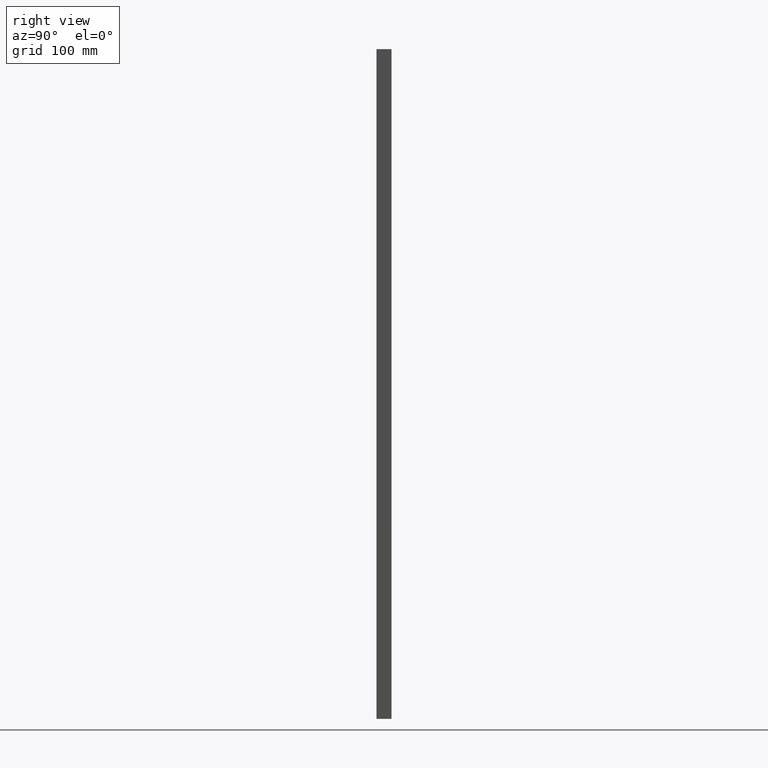
[diagram: clean part render]
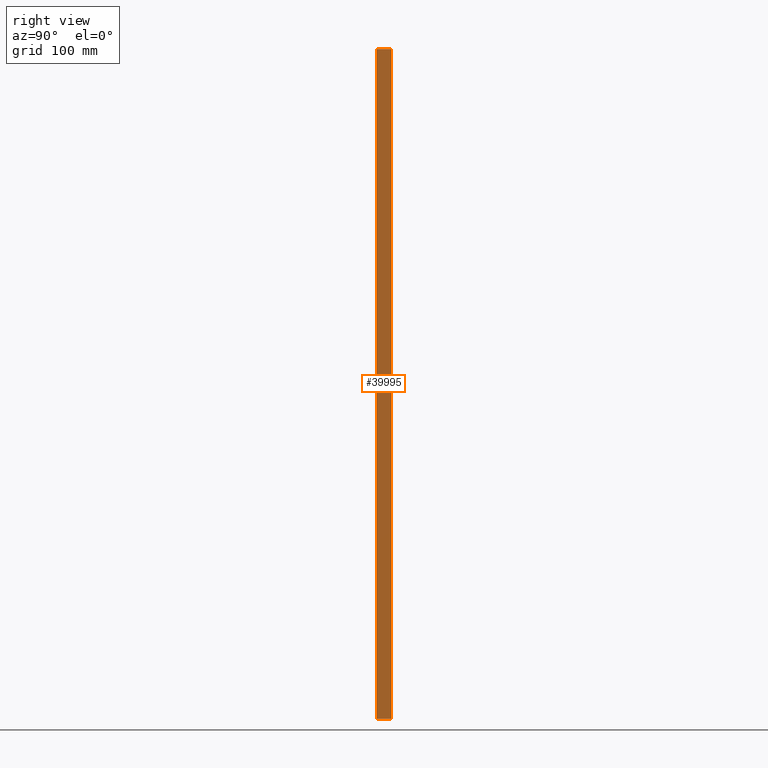
[diagram: same view with one face highlighted and labeled with its STEP entity id]
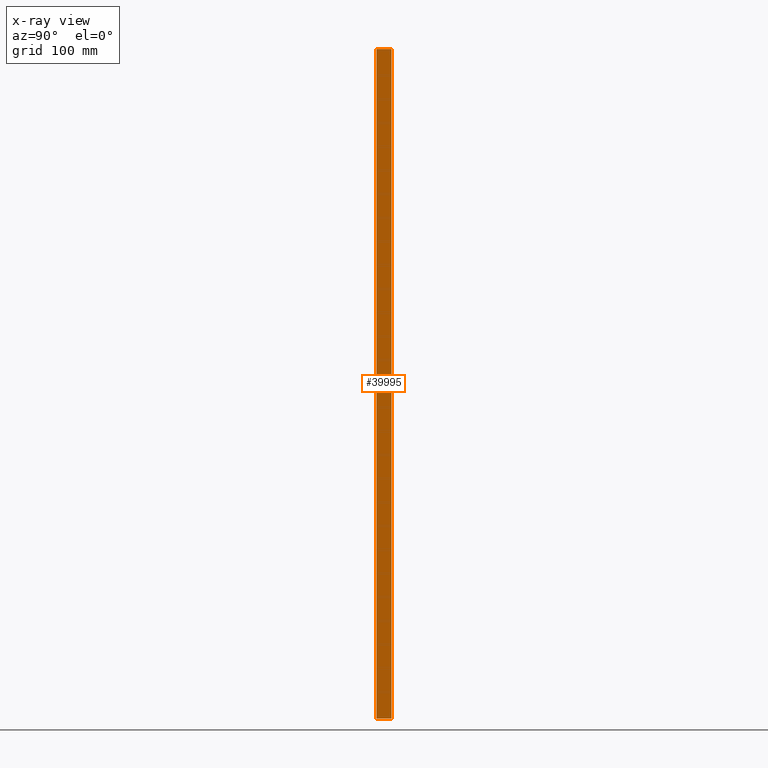
[diagram: x-ray of the same camera — body ghosted, the highlighted face saturated]
A machine part, right view. The second image highlights one B-rep face of the part: STEP entity #39995.
The next image is the same camera in x-ray: the body ghosted, the highlighted face saturated — about 0% of this face is hidden behind the body in this view.
In plain terms, the highlighted planar face has unit normal (1, -0, -0).
Its self-contained STEP definition (entity closure, byte-faithful):
#1998 = VERTEX_POINT ( 'NONE', #50752 ) ;
#2130 = VECTOR ( 'NONE', #17685, 1000.000000000000000 ) ;
#3470 = LINE ( 'NONE', #8432, #2130 ) ;
#3851 = DIRECTION ( 'NONE',  ( 3.061616997868382200E-016, 1.000000000000000000, -3.061616997868382600E-016 ) ) ;
#5218 = CARTESIAN_POINT ( 'NONE',  ( 390.0000000000001100, -10.00000000000000000, 5.551115123125782700E-014 ) ) ;
#6015 = EDGE_CURVE ( 'NONE', #1998, #52372, #25599, .T. ) ;
#6524 = CARTESIAN_POINT ( 'NONE',  ( 390.0000000000001100, 10.00000000000000200, 2.775557561562891400E-014 ) ) ;
#6995 = EDGE_CURVE ( 'NONE', #20002, #42265, #3470, .T. ) ;
#7022 = DIRECTION ( 'NONE',  ( -3.061616997868383100E-016, -1.000000000000000000, -3.061616997868383100E-016 ) ) ;
#8421 = ORIENTED_EDGE ( 'NONE', *, *, #6015, .T. ) ;
#8432 = CARTESIAN_POINT ( 'NONE',  ( 390.0000000000000000, -10.00000000000000000, -890.0000000000000000 ) ) ;
#10482 = FACE_OUTER_BOUND ( 'NONE', #21566, .T. ) ;
#15301 = CARTESIAN_POINT ( 'NONE',  ( 390.0000000000000000, 9.999999999999895200, -890.0000000000000000 ) ) ;
#17685 = DIRECTION ( 'NONE',  ( 1.247441600702423200E-016, 0.0000000000000000000, 1.000000000000000000 ) ) ;
#18340 = ORIENTED_EDGE ( 'NONE', *, *, #28320, .T. ) ;
#20002 = VERTEX_POINT ( 'NONE', #54446 ) ;
#20922 = VECTOR ( 'NONE', #23908, 1000.000000000000000 ) ;
#21566 = EDGE_LOOP ( 'NONE', ( #8421, #23631, #45603, #18340 ) ) ;
#23631 = ORIENTED_EDGE ( 'NONE', *, *, #36932, .T. ) ;
#23908 = DIRECTION ( 'NONE',  ( 1.247441600702423200E-016, 0.0000000000000000000, 1.000000000000000000 ) ) ;
#23931 = PLANE ( 'NONE',  #40105 ) ;
#25599 = LINE ( 'NONE', #54187, #20922 ) ;
#26241 = LINE ( 'NONE', #32549, #40949 ) ;
#28220 = DIRECTION ( 'NONE',  ( 3.061616997868382600E-016, 1.000000000000000000, 0.0000000000000000000 ) ) ;
#28320 = EDGE_CURVE ( 'NONE', #20002, #1998, #48721, .T. ) ;
#32549 = CARTESIAN_POINT ( 'NONE',  ( 390.0000000000001100, 9.999999999999621600, 0.0000000000000000000 ) ) ;
#36932 = EDGE_CURVE ( 'NONE', #52372, #42265, #26241, .T. ) ;
#38330 = CARTESIAN_POINT ( 'NONE',  ( 390.0000000000000000, 9.999999999999895200, -890.0000000000000000 ) ) ;
#39995 = ADVANCED_FACE ( 'NONE', ( #10482 ), #23931, .T. ) ;
#40105 = AXIS2_PLACEMENT_3D ( 'NONE', #15301, #53837, #28220 ) ;
#40949 = VECTOR ( 'NONE', #7022, 1000.000000000000000 ) ;
#41436 = VECTOR ( 'NONE', #3851, 1000.000000000000000 ) ;
#42265 = VERTEX_POINT ( 'NONE', #5218 ) ;
#45603 = ORIENTED_EDGE ( 'NONE', *, *, #6995, .F. ) ;
#48721 = LINE ( 'NONE', #38330, #41436 ) ;
#50752 = CARTESIAN_POINT ( 'NONE',  ( 390.0000000000000000, 10.00000000000000200, -890.0000000000000000 ) ) ;
#52372 = VERTEX_POINT ( 'NONE', #6524 ) ;
#53837 = DIRECTION ( 'NONE',  ( 1.000000000000000000, -3.061616997868382600E-016, -1.247441600702423200E-016 ) ) ;
#54187 = CARTESIAN_POINT ( 'NONE',  ( 390.0000000000000000, 10.00000000000000200, -890.0000000000000000 ) ) ;
#54446 = CARTESIAN_POINT ( 'NONE',  ( 390.0000000000000000, -10.00000000000000000, -890.0000000000000000 ) ) ;